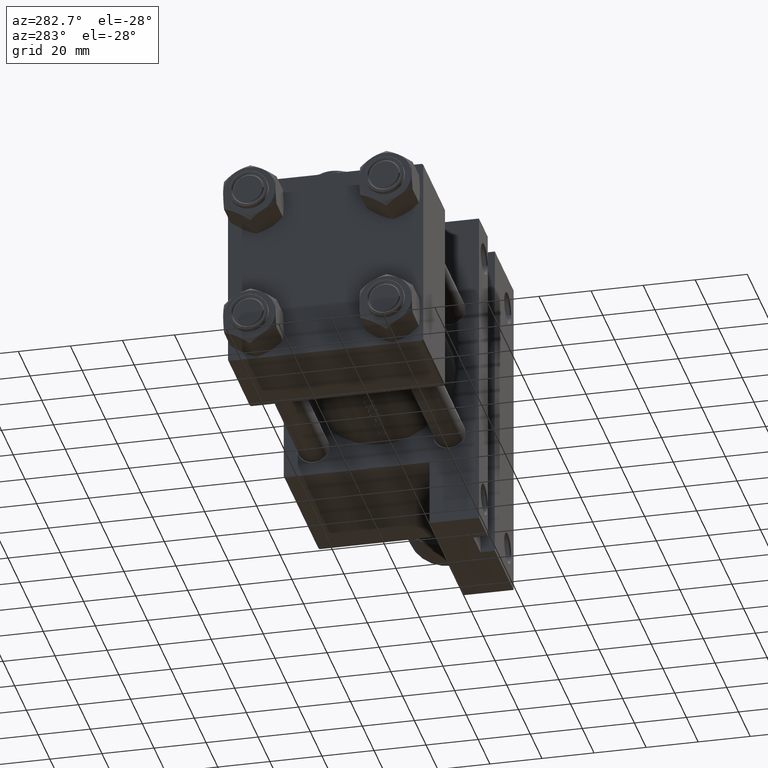
[diagram: clean part render]
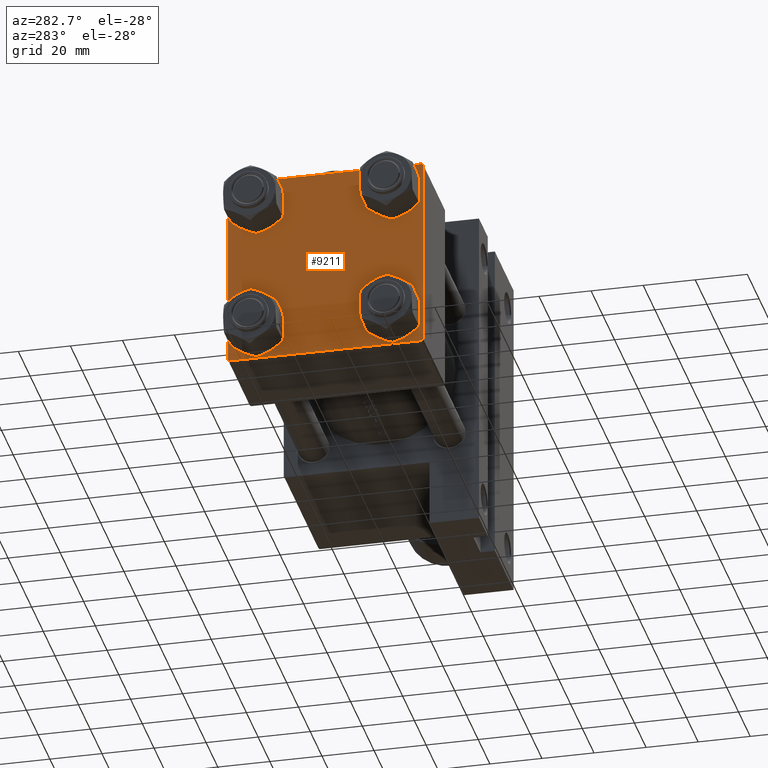
[diagram: same view with one face highlighted and labeled with its STEP entity id]
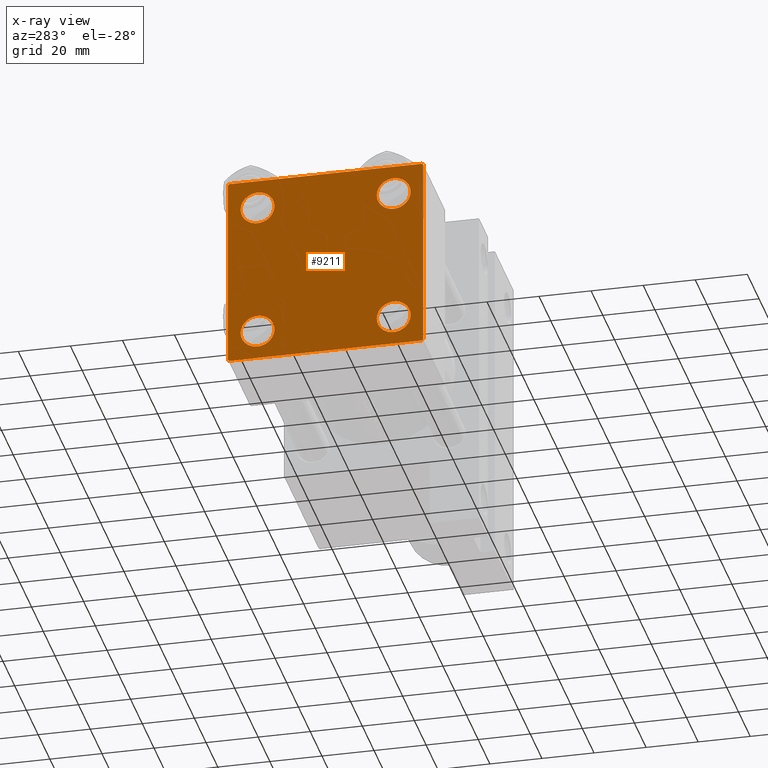
[diagram: x-ray of the same camera — body ghosted, the highlighted face saturated]
A machine part, auxiliary view. The second image highlights one B-rep face of the part: STEP entity #9211.
The next image is the same camera in x-ray: the body ghosted, the highlighted face saturated — about 0% of this face is hidden behind the body in this view.
In plain terms, the highlighted planar face has unit normal (-1, 0, -0).
Its self-contained STEP definition (entity closure, byte-faithful):
#232 = FACE_BOUND ( 'NONE', #25145, .T. ) ;
#262 = DIRECTION ( 'NONE',  ( 0.000000000000000000, -1.000000000000000000, -9.251858538542972814E-17 ) ) ;
#496 = ORIENTED_EDGE ( 'NONE', *, *, #3101, .T. ) ;
#1729 = CARTESIAN_POINT ( 'NONE',  ( 0.000000000000000000, 26.14999999999999858, -32.65000000000001990 ) ) ;
#2100 = CARTESIAN_POINT ( 'NONE',  ( 0.000000000000000000, -26.14999999999999147, -32.65000000000002700 ) ) ;
#2148 = DIRECTION ( 'NONE',  ( 0.000000000000000000, 0.000000000000000000, 1.000000000000000000 ) ) ;
#2789 = VECTOR ( 'NONE', #18550, 1000.000000000000114 ) ;
#3101 = EDGE_CURVE ( 'NONE', #5084, #26801, #27725, .T. ) ;
#3256 = DIRECTION ( 'NONE',  ( -1.000000000000000000, 0.000000000000000000, -0.000000000000000000 ) ) ;
#4433 = EDGE_CURVE ( 'NONE', #10237, #35333, #41533, .T. ) ;
#4778 = CIRCLE ( 'NONE', #44471, 6.500000000000015987 ) ;
#4803 = CARTESIAN_POINT ( 'NONE',  ( 0.000000000000000000, 37.49999999999999289, -37.50000000000000000 ) ) ;
#5036 = EDGE_LOOP ( 'NONE', ( #36554, #34869 ) ) ;
#5084 = VERTEX_POINT ( 'NONE', #40420 ) ;
#5650 = DIRECTION ( 'NONE',  ( 0.000000000000000000, -0.7071067811865524577, 0.7071067811865426878 ) ) ;
#5765 = VERTEX_POINT ( 'NONE', #23034 ) ;
#6100 = CARTESIAN_POINT ( 'NONE',  ( 0.000000000000000000, -26.14999999999999147, 26.15000000000000924 ) ) ;
#6760 = CARTESIAN_POINT ( 'NONE',  ( -0.000000000000000000, -37.25000000000000000, 37.25000000000000000 ) ) ;
#6837 = EDGE_CURVE ( 'NONE', #5765, #37920, #41681, .T. ) ;
#8134 = CARTESIAN_POINT ( 'NONE',  ( 0.000000000000000000, -37.00000000000002132, -37.50000000000000711 ) ) ;
#8888 = EDGE_CURVE ( 'NONE', #42214, #37616, #17796, .T. ) ;
#9195 = ORIENTED_EDGE ( 'NONE', *, *, #43115, .T. ) ;
#9211 = ADVANCED_FACE ( 'NONE', ( #46656, #34999, #11127, #232, #34746 ), #11895, .T. ) ;
#9697 = LINE ( 'NONE', #40430, #45400 ) ;
#9740 = ORIENTED_EDGE ( 'NONE', *, *, #48993, .T. ) ;
#10201 = EDGE_CURVE ( 'NONE', #10237, #23259, #43127, .T. ) ;
#10237 = VERTEX_POINT ( 'NONE', #19014 ) ;
#10471 = VERTEX_POINT ( 'NONE', #30886 ) ;
#11127 = FACE_BOUND ( 'NONE', #29205, .T. ) ;
#11895 = PLANE ( 'NONE',  #31241 ) ;
#12611 = VECTOR ( 'NONE', #28304, 1000.000000000000000 ) ;
#12696 = DIRECTION ( 'NONE',  ( 1.000000000000000000, -0.000000000000000000, 0.000000000000000000 ) ) ;
#12816 = CARTESIAN_POINT ( 'NONE',  ( 0.000000000000000000, 37.49999999999999289, 37.50000000000000000 ) ) ;
#14304 = CARTESIAN_POINT ( 'NONE',  ( 0.000000000000000000, 37.49999999999999289, 37.50000000000000000 ) ) ;
#14538 = VECTOR ( 'NONE', #41781, 1000.000000000000114 ) ;
#14550 = DIRECTION ( 'NONE',  ( 0.000000000000000000, 0.000000000000000000, -1.000000000000000000 ) ) ;
#14610 = AXIS2_PLACEMENT_3D ( 'NONE', #21456, #36932, #2148 ) ;
#15249 = ORIENTED_EDGE ( 'NONE', *, *, #19032, .T. ) ;
#15362 = EDGE_CURVE ( 'NONE', #23887, #17581, #21135, .T. ) ;
#16167 = VERTEX_POINT ( 'NONE', #2100 ) ;
#17581 = VERTEX_POINT ( 'NONE', #39021 ) ;
#17796 = LINE ( 'NONE', #34042, #2789 ) ;
#17905 = AXIS2_PLACEMENT_3D ( 'NONE', #43262, #47289, #42763 ) ;
#17921 = CARTESIAN_POINT ( 'NONE',  ( 0.000000000000000000, 37.24999999999998579, -37.24999999999998579 ) ) ;
#18399 = DIRECTION ( 'NONE',  ( 1.000000000000000000, -0.000000000000000000, 0.000000000000000000 ) ) ;
#18550 = DIRECTION ( 'NONE',  ( 0.000000000000000000, 0.7071067811865474617, -0.7071067811865474617 ) ) ;
#18802 = AXIS2_PLACEMENT_3D ( 'NONE', #39658, #23947, #43967 ) ;
#18902 = CARTESIAN_POINT ( 'NONE',  ( 0.000000000000000000, 26.14999999999999858, 26.15000000000000213 ) ) ;
#19014 = CARTESIAN_POINT ( 'NONE',  ( 0.000000000000000000, -37.50000000000000711, 36.99999999999999289 ) ) ;
#19032 = EDGE_CURVE ( 'NONE', #17581, #23887, #34215, .T. ) ;
#20313 = ORIENTED_EDGE ( 'NONE', *, *, #43608, .T. ) ;
#20520 = ORIENTED_EDGE ( 'NONE', *, *, #34103, .F. ) ;
#21059 = CARTESIAN_POINT ( 'NONE',  ( 0.000000000000000000, 26.14999999999999858, -26.15000000000000213 ) ) ;
#21135 = CIRCLE ( 'NONE', #32487, 6.500000000000023093 ) ;
#21456 = CARTESIAN_POINT ( 'NONE',  ( 0.000000000000000000, 26.14999999999999858, -26.15000000000000213 ) ) ;
#21661 = VECTOR ( 'NONE', #262, 1000.000000000000000 ) ;
#22476 = CARTESIAN_POINT ( 'NONE',  ( 0.000000000000000000, -26.14999999999999147, -19.64999999999999503 ) ) ;
#22827 = DIRECTION ( 'NONE',  ( -0.000000000000000000, 0.000000000000000000, 1.000000000000000000 ) ) ;
#23034 = CARTESIAN_POINT ( 'NONE',  ( 0.000000000000000000, 26.14999999999999858, 19.64999999999998437 ) ) ;
#23152 = VECTOR ( 'NONE', #42878, 1000.000000000000000 ) ;
#23259 = VERTEX_POINT ( 'NONE', #47726 ) ;
#23378 = ORIENTED_EDGE ( 'NONE', *, *, #8888, .T. ) ;
#23489 = CIRCLE ( 'NONE', #46944, 6.500000000000023093 ) ;
#23887 = VERTEX_POINT ( 'NONE', #38263 ) ;
#23947 = DIRECTION ( 'NONE',  ( 1.000000000000000000, -0.000000000000000000, 0.000000000000000000 ) ) ;
#24636 = DIRECTION ( 'NONE',  ( -0.000000000000000000, 0.7071067811865474617, 0.7071067811865474617 ) ) ;
#25145 = EDGE_LOOP ( 'NONE', ( #9195, #41052 ) ) ;
#26724 = CARTESIAN_POINT ( 'NONE',  ( 0.000000000000000000, -26.14999999999999147, -26.15000000000000924 ) ) ;
#26801 = VERTEX_POINT ( 'NONE', #1729 ) ;
#26833 = CIRCLE ( 'NONE', #17905, 6.500000000000015987 ) ;
#26976 = DIRECTION ( 'NONE',  ( 0.000000000000000000, 0.000000000000000000, 1.000000000000000000 ) ) ;
#27625 = DIRECTION ( 'NONE',  ( 0.000000000000000000, 0.000000000000000000, 1.000000000000000000 ) ) ;
#27725 = CIRCLE ( 'NONE', #32565, 6.500000000000015987 ) ;
#27902 = AXIS2_PLACEMENT_3D ( 'NONE', #18902, #18399, #31103 ) ;
#28184 = DIRECTION ( 'NONE',  ( 0.000000000000000000, 0.000000000000000000, 1.000000000000000000 ) ) ;
#28304 = DIRECTION ( 'NONE',  ( 0.000000000000000000, -1.000000000000000000, -9.251858538542971581E-17 ) ) ;
#29205 = EDGE_LOOP ( 'NONE', ( #496, #47469 ) ) ;
#30862 = VERTEX_POINT ( 'NONE', #22476 ) ;
#30886 = CARTESIAN_POINT ( 'NONE',  ( 0.000000000000000000, 36.99999999999997868, -37.50000000000000000 ) ) ;
#31103 = DIRECTION ( 'NONE',  ( 0.000000000000000000, 0.000000000000000000, 1.000000000000000000 ) ) ;
#31241 = AXIS2_PLACEMENT_3D ( 'NONE', #38036, #3256, #22827 ) ;
#32487 = AXIS2_PLACEMENT_3D ( 'NONE', #6100, #42891, #34770 ) ;
#32565 = AXIS2_PLACEMENT_3D ( 'NONE', #21059, #12696, #28184 ) ;
#34042 = CARTESIAN_POINT ( 'NONE',  ( 0.000000000000000000, 37.24999999999999289, 37.24999999999999289 ) ) ;
#34100 = LINE ( 'NONE', #14304, #46869 ) ;
#34103 = EDGE_CURVE ( 'NONE', #42214, #35333, #47569, .T. ) ;
#34215 = CIRCLE ( 'NONE', #18802, 6.500000000000023093 ) ;
#34249 = CARTESIAN_POINT ( 'NONE',  ( 0.000000000000000000, -37.50000000000000711, 37.49999999999999289 ) ) ;
#34746 = FACE_OUTER_BOUND ( 'NONE', #42088, .T. ) ;
#34770 = DIRECTION ( 'NONE',  ( 0.000000000000000000, 0.000000000000000000, 1.000000000000000000 ) ) ;
#34869 = ORIENTED_EDGE ( 'NONE', *, *, #42375, .T. ) ;
#34999 = FACE_BOUND ( 'NONE', #5036, .T. ) ;
#35026 = LINE ( 'NONE', #4803, #21661 ) ;
#35333 = VERTEX_POINT ( 'NONE', #38734 ) ;
#35982 = DIRECTION ( 'NONE',  ( 1.000000000000000000, -0.000000000000000000, 0.000000000000000000 ) ) ;
#36554 = ORIENTED_EDGE ( 'NONE', *, *, #49786, .T. ) ;
#36932 = DIRECTION ( 'NONE',  ( 1.000000000000000000, -0.000000000000000000, 0.000000000000000000 ) ) ;
#36957 = ORIENTED_EDGE ( 'NONE', *, *, #46654, .T. ) ;
#37309 = ORIENTED_EDGE ( 'NONE', *, *, #15362, .T. ) ;
#37331 = CIRCLE ( 'NONE', #14610, 6.500000000000015987 ) ;
#37616 = VERTEX_POINT ( 'NONE', #46486 ) ;
#37920 = VERTEX_POINT ( 'NONE', #41881 ) ;
#38036 = CARTESIAN_POINT ( 'NONE',  ( 0.000000000000000000, 0.000000000000000000, 0.000000000000000000 ) ) ;
#38067 = EDGE_CURVE ( 'NONE', #10471, #45516, #35026, .T. ) ;
#38263 = CARTESIAN_POINT ( 'NONE',  ( 0.000000000000000000, -26.14999999999999147, 32.65000000000003411 ) ) ;
#38734 = CARTESIAN_POINT ( 'NONE',  ( 0.000000000000000000, -37.00000000000000711, 37.49999999999999289 ) ) ;
#39021 = CARTESIAN_POINT ( 'NONE',  ( 0.000000000000000000, -26.14999999999999147, 19.64999999999999147 ) ) ;
#39658 = CARTESIAN_POINT ( 'NONE',  ( 0.000000000000000000, -26.14999999999999147, 26.15000000000000924 ) ) ;
#39938 = VERTEX_POINT ( 'NONE', #45842 ) ;
#40040 = CARTESIAN_POINT ( 'NONE',  ( 0.000000000000000000, 26.14999999999999858, 26.15000000000000213 ) ) ;
#40420 = CARTESIAN_POINT ( 'NONE',  ( 0.000000000000000000, 26.14999999999999858, -19.64999999999998792 ) ) ;
#40430 = CARTESIAN_POINT ( 'NONE',  ( 0.000000000000000000, -37.24999999999975842, -37.25000000000027001 ) ) ;
#40723 = EDGE_LOOP ( 'NONE', ( #37309, #15249 ) ) ;
#41052 = ORIENTED_EDGE ( 'NONE', *, *, #6837, .T. ) ;
#41270 = LINE ( 'NONE', #17921, #14538 ) ;
#41533 = LINE ( 'NONE', #6760, #49601 ) ;
#41663 = ORIENTED_EDGE ( 'NONE', *, *, #4433, .T. ) ;
#41681 = CIRCLE ( 'NONE', #27902, 6.500000000000023093 ) ;
#41781 = DIRECTION ( 'NONE',  ( -0.000000000000000000, -0.7071067811865474617, -0.7071067811865474617 ) ) ;
#41881 = CARTESIAN_POINT ( 'NONE',  ( 0.000000000000000000, 26.14999999999999858, 32.65000000000002700 ) ) ;
#42088 = EDGE_LOOP ( 'NONE', ( #20313, #36957, #48939, #9740, #45661, #41663, #20520, #23378 ) ) ;
#42214 = VERTEX_POINT ( 'NONE', #43094 ) ;
#42375 = EDGE_CURVE ( 'NONE', #16167, #30862, #4778, .T. ) ;
#42763 = DIRECTION ( 'NONE',  ( 0.000000000000000000, 0.000000000000000000, 1.000000000000000000 ) ) ;
#42878 = DIRECTION ( 'NONE',  ( 0.000000000000000000, 9.251858538542971581E-17, -1.000000000000000000 ) ) ;
#42891 = DIRECTION ( 'NONE',  ( 1.000000000000000000, -0.000000000000000000, 0.000000000000000000 ) ) ;
#43094 = CARTESIAN_POINT ( 'NONE',  ( 0.000000000000000000, 36.99999999999999289, 37.50000000000000000 ) ) ;
#43115 = EDGE_CURVE ( 'NONE', #37920, #5765, #23489, .T. ) ;
#43127 = LINE ( 'NONE', #34249, #23152 ) ;
#43262 = CARTESIAN_POINT ( 'NONE',  ( 0.000000000000000000, -26.14999999999999147, -26.15000000000000924 ) ) ;
#43608 = EDGE_CURVE ( 'NONE', #37616, #39938, #34100, .T. ) ;
#43967 = DIRECTION ( 'NONE',  ( 0.000000000000000000, 0.000000000000000000, 1.000000000000000000 ) ) ;
#44471 = AXIS2_PLACEMENT_3D ( 'NONE', #26724, #45748, #26976 ) ;
#45400 = VECTOR ( 'NONE', #5650, 1000.000000000000000 ) ;
#45516 = VERTEX_POINT ( 'NONE', #8134 ) ;
#45661 = ORIENTED_EDGE ( 'NONE', *, *, #10201, .F. ) ;
#45748 = DIRECTION ( 'NONE',  ( 1.000000000000000000, -0.000000000000000000, 0.000000000000000000 ) ) ;
#45842 = CARTESIAN_POINT ( 'NONE',  ( 0.000000000000000000, 37.49999999999999289, -36.99999999999998579 ) ) ;
#46486 = CARTESIAN_POINT ( 'NONE',  ( 0.000000000000000000, 37.49999999999999289, 37.00000000000000000 ) ) ;
#46654 = EDGE_CURVE ( 'NONE', #39938, #10471, #41270, .T. ) ;
#46656 = FACE_BOUND ( 'NONE', #40723, .T. ) ;
#46869 = VECTOR ( 'NONE', #14550, 1000.000000000000000 ) ;
#46944 = AXIS2_PLACEMENT_3D ( 'NONE', #40040, #35982, #27625 ) ;
#47289 = DIRECTION ( 'NONE',  ( 1.000000000000000000, -0.000000000000000000, 0.000000000000000000 ) ) ;
#47469 = ORIENTED_EDGE ( 'NONE', *, *, #48690, .T. ) ;
#47569 = LINE ( 'NONE', #12816, #12611 ) ;
#47726 = CARTESIAN_POINT ( 'NONE',  ( 0.000000000000000000, -37.50000000000000000, -37.00000000000003553 ) ) ;
#48690 = EDGE_CURVE ( 'NONE', #26801, #5084, #37331, .T. ) ;
#48939 = ORIENTED_EDGE ( 'NONE', *, *, #38067, .T. ) ;
#48993 = EDGE_CURVE ( 'NONE', #45516, #23259, #9697, .T. ) ;
#49601 = VECTOR ( 'NONE', #24636, 1000.000000000000114 ) ;
#49786 = EDGE_CURVE ( 'NONE', #30862, #16167, #26833, .T. ) ;